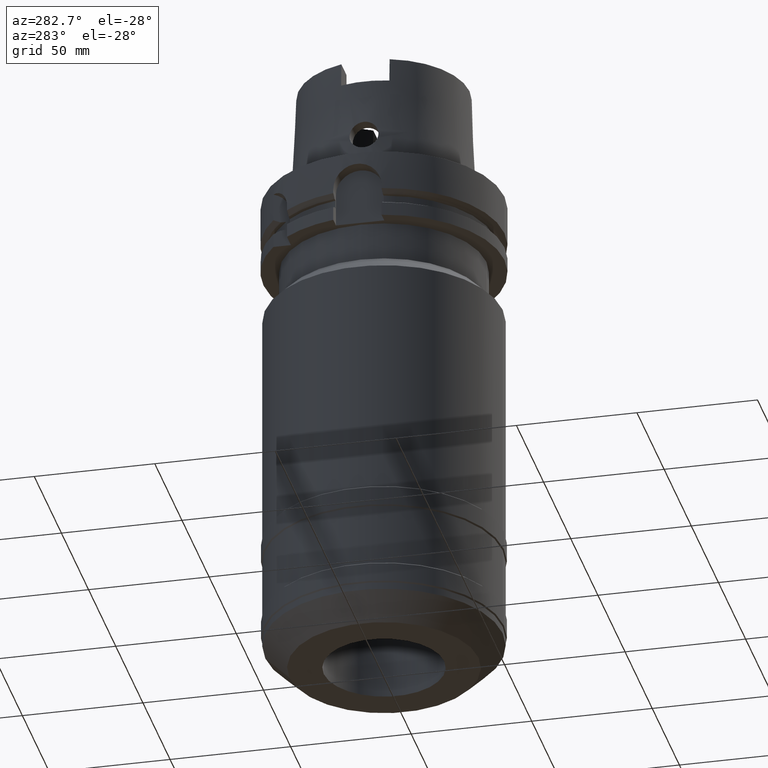
[diagram: clean part render]
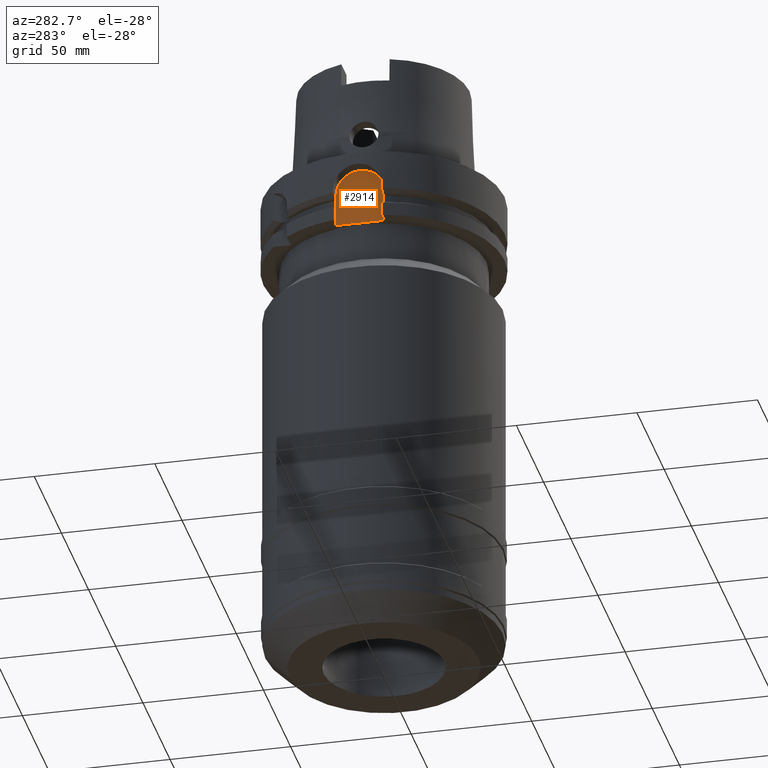
[diagram: same view with one face highlighted and labeled with its STEP entity id]
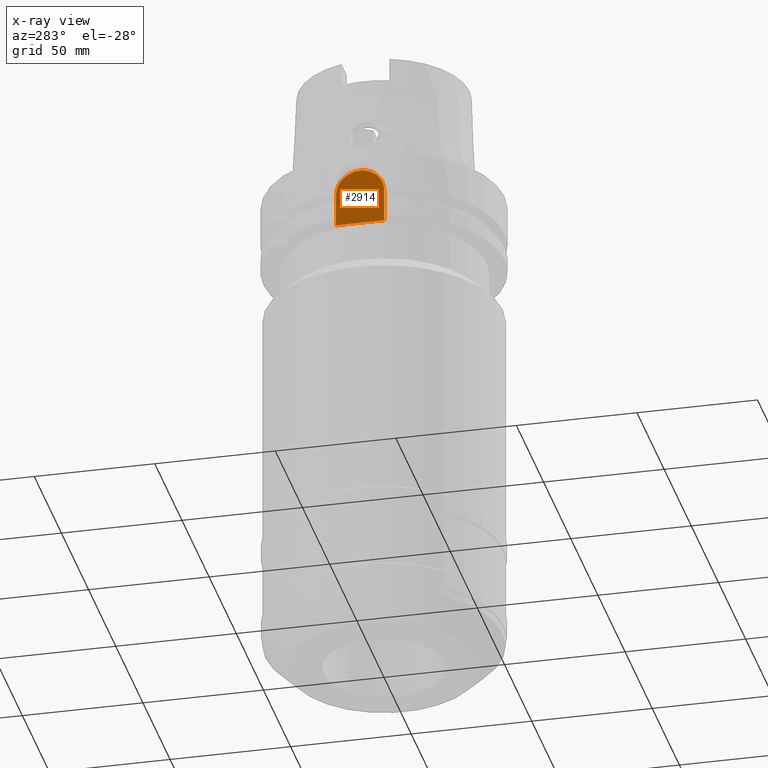
[diagram: x-ray of the same camera — body ghosted, the highlighted face saturated]
A machine part, auxiliary view. The second image highlights one B-rep face of the part: STEP entity #2914.
The next image is the same camera in x-ray: the body ghosted, the highlighted face saturated — about 0% of this face is hidden behind the body in this view.
In plain terms, the highlighted planar face has unit normal (1, 0, 0).
Its self-contained STEP definition (entity closure, byte-faithful):
#600=DIRECTION('',(0.E0,0.E0,-1.E0));
#601=VECTOR('',#600,1.4E1);
#602=CARTESIAN_POINT('',(-4.4E1,1.E1,-1.5E1));
#603=LINE('',#602,#601);
#743=DIRECTION('',(0.E0,0.E0,1.E0));
#744=VECTOR('',#743,1.4E1);
#745=CARTESIAN_POINT('',(-4.4E1,-1.E1,-2.9E1));
#746=LINE('',#745,#744);
#757=DIRECTION('',(0.E0,1.E0,0.E0));
#758=VECTOR('',#757,2.E1);
#759=CARTESIAN_POINT('',(-4.4E1,-1.E1,-2.9E1));
#760=LINE('',#759,#758);
#764=CARTESIAN_POINT('',(-4.4E1,0.E0,-1.5E1));
#765=DIRECTION('',(1.E0,0.E0,0.E0));
#766=DIRECTION('',(0.E0,1.E0,0.E0));
#767=AXIS2_PLACEMENT_3D('',#764,#765,#766);
#772=CARTESIAN_POINT('',(-4.4E1,0.E0,-1.5E1));
#773=DIRECTION('',(1.E0,0.E0,0.E0));
#774=DIRECTION('',(0.E0,0.E0,1.E0));
#775=AXIS2_PLACEMENT_3D('',#772,#773,#774);
#2188=CARTESIAN_POINT('',(-4.4E1,1.E1,-2.9E1));
#2189=VERTEX_POINT('',#2188);
#2190=CARTESIAN_POINT('',(-4.4E1,-1.E1,-2.9E1));
#2191=VERTEX_POINT('',#2190);
#2330=CARTESIAN_POINT('',(-4.4E1,-1.E1,-1.5E1));
#2331=VERTEX_POINT('',#2330);
#2339=CARTESIAN_POINT('',(-4.4E1,1.E1,-1.5E1));
#2340=VERTEX_POINT('',#2339);
#2341=CARTESIAN_POINT('',(-4.4E1,0.E0,-5.E0));
#2342=VERTEX_POINT('',#2341);
#2902=CARTESIAN_POINT('',(-4.4E1,0.E0,0.E0));
#2903=DIRECTION('',(1.E0,0.E0,0.E0));
#2904=DIRECTION('',(0.E0,0.E0,1.E0));
#2905=AXIS2_PLACEMENT_3D('',#2902,#2903,#2904);
#2906=PLANE('',#2905);
#2907=ORIENTED_EDGE('',*,*,#2695,.T.);
#2908=ORIENTED_EDGE('',*,*,#2792,.F.);
#2909=ORIENTED_EDGE('',*,*,#2871,.T.);
#2910=ORIENTED_EDGE('',*,*,#2869,.T.);
#2911=ORIENTED_EDGE('',*,*,#2883,.F.);
#2912=EDGE_LOOP('',(#2907,#2908,#2909,#2910,#2911));
#2913=FACE_OUTER_BOUND('',#2912,.F.);
#768=CIRCLE('',#767,1.E1);
#776=CIRCLE('',#775,1.E1);
#2695=EDGE_CURVE('',#2191,#2189,#760,.T.);
#2792=EDGE_CURVE('',#2340,#2189,#603,.T.);
#2869=EDGE_CURVE('',#2342,#2331,#776,.T.);
#2871=EDGE_CURVE('',#2340,#2342,#768,.T.);
#2883=EDGE_CURVE('',#2191,#2331,#746,.T.);
#2914=ADVANCED_FACE('',(#2913),#2906,.F.);